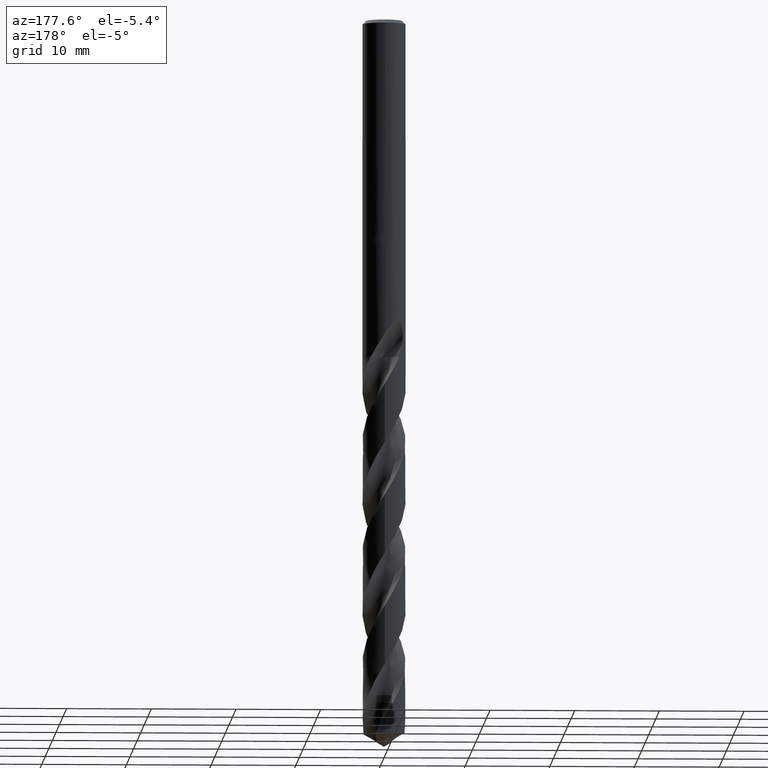
[diagram: clean part render]
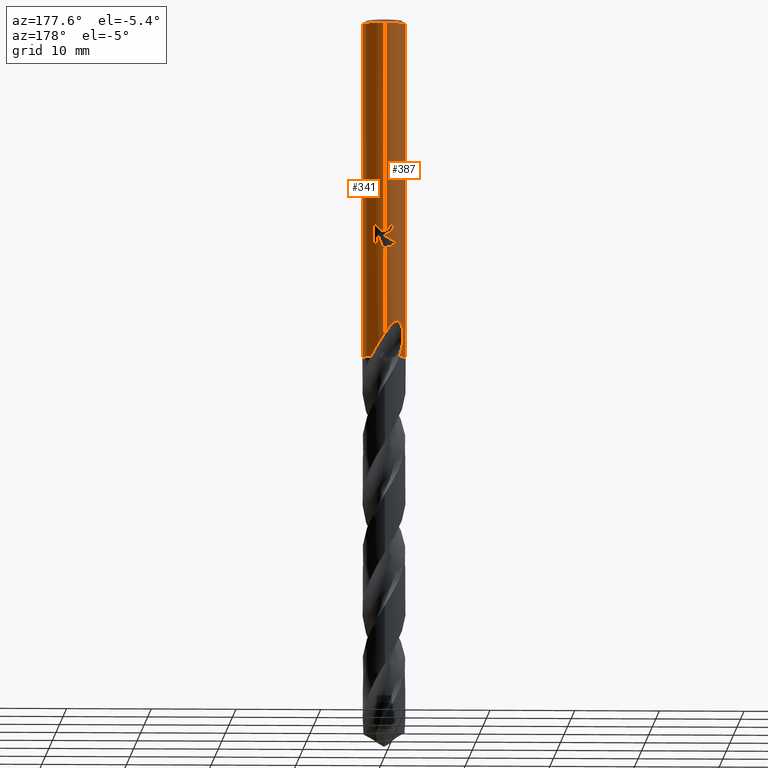
[diagram: same view with one multi-face feature highlighted, each face labeled with its STEP entity id]
A machine part, auxiliary view. The highlighted faces form ONE feature: a constant-radius fillet chain: 2 tangent blend faces with common blend radius 2.55 mm. The faces share edges in the B-rep.
Their STEP definitions:
[1] entity #387 (Cylinder):
#279=VERTEX_POINT('',#778);
#281=EDGE_CURVE('',#279,#441,#780,.T.);
#311=VERTEX_POINT('',#815);
#323=VERTEX_POINT('',#828);
#325=EDGE_CURVE('',#621,#331,#830,.T.);
#331=VERTEX_POINT('',#836);
#335=VERTEX_POINT('',#840);
#387=ADVANCED_FACE('',(#897),#898,.T.);
#391=EDGE_CURVE('',#425,#665,#902,.T.);
#393=VERTEX_POINT('',#904);
#425=VERTEX_POINT('',#941);
#441=VERTEX_POINT('',#957);
#485=EDGE_CURVE('',#609,#425,#1004,.T.);
#537=VERTEX_POINT('',#1059);
#553=EDGE_CURVE('',#311,#575,#1076,.T.);
#575=VERTEX_POINT('',#1099);
#577=EDGE_CURVE('',#441,#609,#1101,.T.);
#589=EDGE_CURVE('',#665,#623,#1115,.T.);
#593=EDGE_CURVE('',#335,#537,#1119,.T.);
#609=VERTEX_POINT('',#1137);
#617=EDGE_CURVE('',#393,#621,#1146,.T.);
#621=VERTEX_POINT('',#1150);
#623=VERTEX_POINT('',#1152);
#653=EDGE_CURVE('',#657,#575,#1184,.T.);
#657=VERTEX_POINT('',#1188);
#665=VERTEX_POINT('',#1198);
#675=EDGE_CURVE('',#323,#335,#1209,.T.);
#693=EDGE_CURVE('',#657,#279,#1228,.T.);
#715=EDGE_CURVE('',#623,#393,#1252,.T.);
#729=EDGE_CURVE('',#537,#311,#1269,.T.);
#737=EDGE_CURVE('',#331,#323,#1278,.T.);
#778=CARTESIAN_POINT('',(8.19722774088403E-013,-2.55,-37.1944020432198));
#780=LINE('',#1471,#1472);
#815=CARTESIAN_POINT('',(-2.07478751640229,1.48248330910713,-38.5086704184706));
#828=CARTESIAN_POINT('',(-1.337052752443,2.17135670427146,-26.3720803908795));
#830=LINE('',#1715,#1716);
#836=CARTESIAN_POINT('',(-3.12274620224706E-016,2.55,-25.7128911336578));
#840=CARTESIAN_POINT('',(1.0146208194845E-016,2.55,-27.0310253601033));
#897=FACE_OUTER_BOUND('',#2328,.T.);
#898=CYLINDRICAL_SURFACE('',#2329,2.55);
#902=B_SPLINE_CURVE_WITH_KNOTS('',3,(#2336,#2337,#2338,#2339,#2340,#2341,#2342,#2343,#2344,#2345,#2346,#2347,#2348,#2349,#2350,#2351,#2352,#2353,#2354,#2355,#2356,#2357,#2358,#2359,#2360,#2361,#2362),.UNSPECIFIED.,.F.,.F.,(4,2,3,2,2,2,2,2,2,2,2,2,4),(-0.545364452007878,-0.272682226003939,0.0,0.272682226003939,0.545364452007878,0.820193175057681,1.09502189810748,1.3660672093545,1.63711252060152,1.9092698417396,2.18142716287768,2.45358448401575,2.72574180515383),.UNSPECIFIED.);
#904=CARTESIAN_POINT('',(-1.0350734039088,2.33047700021276,-24.3171221986971));
#941=CARTESIAN_POINT('',(-1.16429289846349E-015,2.55,-25.0232688117743));
#957=CARTESIAN_POINT('',(3.12274620224706E-016,-2.55,-0.399999999999999));
#1004=LINE('',#3471,#3472);
#1059=CARTESIAN_POINT('',(-8.20832997113028E-013,2.55,-37.1944020432198));
#1076=B_SPLINE_CURVE_WITH_KNOTS('',3,(#5034,#5035,#5036,#5037),.UNSPECIFIED.,.F.,.F.,(4,4),(0.0,1.46027444966669),.UNSPECIFIED.);
#1099=CARTESIAN_POINT('',(-1.77376667079447,1.8320075866597,-39.9));
#1101=CIRCLE('',#5080,2.55);
#1115=B_SPLINE_CURVE_WITH_KNOTS('',3,(#5271,#5272,#5273,#5274,#5275,#5276,#5277,#5278,#5279,#5280,#5281,#5282,#5283,#5284,#5285,#5286,#5287,#5288,#5289,#5290,#5291,#5292,#5293,#5294,#5295,#5296,#5297),.UNSPECIFIED.,.F.,.F.,(4,2,3,2,2,2,2,2,2,2,2,2,4),(-0.545364452007878,-0.272682226003939,0.0,0.272682226003939,0.545364452007878,0.820193175057681,1.09502189810748,1.3660672093545,1.63711252060152,1.9092698417396,2.18142716287768,2.45358448401575,2.72574180515383),.UNSPECIFIED.);
#1119=LINE('',#5302,#5303);
#1137=CARTESIAN_POINT('',(0.0,2.55,-0.399999999999999));
#1146=B_SPLINE_CURVE_WITH_KNOTS('',3,(#6129,#6130,#6131,#6132,#6133,#6134,#6135,#6136,#6137,#6138,#6139,#6140,#6141,#6142,#6143,#6144),.UNSPECIFIED.,.F.,.F.,(4,2,2,2,2,2,2,4),(3.40456646310992,3.63093216842028,3.85729787373065,4.08366357904102,4.53639498966175,4.98511114005673,5.43382729045171,5.89282539333501),.UNSPECIFIED.);
#1150=CARTESIAN_POINT('',(-5.89297921147403E-017,2.55,-25.5000801551881));
#1152=CARTESIAN_POINT('',(-0.562333990228013,2.48722344863389,-24.3171221986971));
#1184=CIRCLE('',#6559,2.55);
#1188=CARTESIAN_POINT('',(-1.62252704032341,-1.96720766657192,-39.9));
#1198=CARTESIAN_POINT('',(-0.486378944383047,2.50318507555091,-24.6432837483006));
#1209=B_SPLINE_CURVE_WITH_KNOTS('',3,(#6745,#6746,#6747,#6748,#6749,#6750,#6751,#6752,#6753,#6754,#6755,#6756,#6757,#6758),.UNSPECIFIED.,.F.,.F.,(4,2,2,2,2,2,4),(5.73045896206865,6.37039006809862,6.68816813431112,7.00594620052362,7.32372426673613,7.64150233294863,7.95724082299976),.UNSPECIFIED.);
#1228=B_SPLINE_CURVE_WITH_KNOTS('',3,(#6929,#6930,#6931,#6932,#6933,#6934,#6935,#6936,#6937,#6938,#6939,#6940,#6941,#6942,#6943,#6944,#6945,#6946,#6947,#6948,#6949,#6950,#6951,#6952,#6953,#6954,#6955,#6956),.UNSPECIFIED.,.F.,.F.,(4,2,2,2,2,2,2,2,2,2,2,2,2,4),(0.0,1.24572091610398,1.927565779245,2.54569044803933,3.26412263290358,4.12685159076571,4.87234190309073,5.21101516350773,5.45858921436223,5.69289635033605,5.99017346349032,6.4251397966631,7.04346886642402,7.7461574974107),.UNSPECIFIED.);
#1252=CIRCLE('',#7059,2.55);
#1269=B_SPLINE_CURVE_WITH_KNOTS('',3,(#7248,#7249,#7250,#7251,#7252,#7253,#7254,#7255,#7256,#7257,#7258,#7259,#7260,#7261,#7262,#7263,#7264,#7265,#7266,#7267,#7268,#7269,#7270,#7271,#7272,#7273,#7274,#7275),.UNSPECIFIED.,.F.,.F.,(4,2,2,2,2,2,2,2,2,2,2,2,2,4),(0.0,1.24572091610398,1.92756577924506,2.54569044803948,3.26412263290359,4.12685159076577,4.8723419030908,5.21101516350781,5.4585892143623,5.69289635033612,5.99017346349038,6.42513979666435,7.04346886642923,7.74615749742081),.UNSPECIFIED.);
#1278=ELLIPSE('',#7710,2.84306750170929,2.55);
#1471=CARTESIAN_POINT('',(3.12274620224706E-016,-2.55,-34.45));
#1472=VECTOR('',#7892,1.0);
#1715=CARTESIAN_POINT('',(-3.12274620224706E-016,2.55,-34.45));
#1716=VECTOR('',#7969,1.0);
#2328=EDGE_LOOP('',(#8046,#8047,#8048,#8049,#8050,#8051,#8052,#8053,#8054,#8055,#8056,#8057,#8058,#8059,#8060));
#2329=AXIS2_PLACEMENT_3D('',#8061,#8062,#8063);
#2336=CARTESIAN_POINT('',(0.665926145423956,2.46151221180005,-23.8144018657024));
#2337=CARTESIAN_POINT('',(0.728923765407755,2.44446912664062,-23.8776677021038));
#2338=CARTESIAN_POINT('',(0.783860176321498,2.42684151535854,-23.9578241517427));
#2339=CARTESIAN_POINT('',(0.857116231736911,2.40194678277551,-24.1343323482328));
#2340=CARTESIAN_POINT('',(0.875400981188567,2.39503092300164,-24.2307479372521));
#2341=CARTESIAN_POINT('',(0.875400981188567,2.39503092300164,-24.3216420125868));
#2342=CARTESIAN_POINT('',(0.875400981188567,2.39503092300164,-24.4125360879214));
#2343=CARTESIAN_POINT('',(0.857116231736909,2.40194678277552,-24.5089516769407));
#2344=CARTESIAN_POINT('',(0.783860176321494,2.42684151535855,-24.6854598734308));
#2345=CARTESIAN_POINT('',(0.728923765407755,2.44446912664062,-24.7656163230698));
#2346=CARTESIAN_POINT('',(0.602432621445339,2.47868945653594,-24.8926460112105));
#2347=CARTESIAN_POINT('',(0.521997424418927,2.49761939924587,-24.9480838383736));
#2348=CARTESIAN_POINT('',(0.34479176646956,2.52818168103565,-25.0220380424342));
#2349=CARTESIAN_POINT('',(0.24796321643811,2.53956818325601,-25.0405166027747));
#2350=CARTESIAN_POINT('',(0.0663483246940973,2.55073729339058,-25.0405166027747));
#2351=CARTESIAN_POINT('',(-0.0298943452179204,2.55136154204061,-25.0224914484988));
#2352=CARTESIAN_POINT('',(-0.206784219328264,2.54314366034012,-24.9492947980859));
#2353=CARTESIAN_POINT('',(-0.287449216744173,2.53456196703142,-24.8941372955426));
#2354=CARTESIAN_POINT('',(-0.415038170156158,2.51682512373737,-24.7668898244719));
#2355=CARTESIAN_POINT('',(-0.470471899261567,2.50650526224512,-24.6861480431406));
#2356=CARTESIAN_POINT('',(-0.544134754870386,2.4915516939521,-24.5088996337151));
#2357=CARTESIAN_POINT('',(-0.562348199187247,2.48722023610111,-24.4123611196328));
#2358=CARTESIAN_POINT('',(-0.562348199187247,2.48722023610111,-24.2309229055408));
#2359=CARTESIAN_POINT('',(-0.544134754870388,2.4915516939521,-24.1343843914584));
#2360=CARTESIAN_POINT('',(-0.470471899261571,2.50650526224512,-23.957135982033));
#2361=CARTESIAN_POINT('',(-0.415038170156158,2.51682512373737,-23.8763942007017));
#2362=CARTESIAN_POINT('',(-0.35111309745364,2.52571170025332,-23.8126402187003));
#3471=CARTESIAN_POINT('',(-3.12274620224706E-016,2.55,-34.45));
#3472=VECTOR('',#8166,1.0);
#5034=CARTESIAN_POINT('',(-2.07478751645491,1.48248330903348,-38.5086704184995));
#5035=CARTESIAN_POINT('',(-1.99287275310206,1.59712590054343,-38.9745894503495));
#5036=CARTESIAN_POINT('',(-1.89420791716216,1.71539525920451,-39.4432471318709));
#5037=CARTESIAN_POINT('',(-1.77376667079447,1.8320075866597,-39.9));
#5080=AXIS2_PLACEMENT_3D('',#8245,#8246,#8247);
#5271=CARTESIAN_POINT('',(0.665926145423956,2.46151221180005,-23.8144018657024));
#5272=CARTESIAN_POINT('',(0.728923765407755,2.44446912664062,-23.8776677021038));
#5273=CARTESIAN_POINT('',(0.783860176321498,2.42684151535854,-23.9578241517427));
#5274=CARTESIAN_POINT('',(0.857116231736911,2.40194678277551,-24.1343323482328));
#5275=CARTESIAN_POINT('',(0.875400981188567,2.39503092300164,-24.2307479372521));
#5276=CARTESIAN_POINT('',(0.875400981188567,2.39503092300164,-24.3216420125868));
#5277=CARTESIAN_POINT('',(0.875400981188567,2.39503092300164,-24.4125360879214));
#5278=CARTESIAN_POINT('',(0.857116231736909,2.40194678277552,-24.5089516769407));
#5279=CARTESIAN_POINT('',(0.783860176321494,2.42684151535855,-24.6854598734308));
#5280=CARTESIAN_POINT('',(0.728923765407755,2.44446912664062,-24.7656163230698));
#5281=CARTESIAN_POINT('',(0.602432621445339,2.47868945653594,-24.8926460112105));
#5282=CARTESIAN_POINT('',(0.521997424418927,2.49761939924587,-24.9480838383736));
#5283=CARTESIAN_POINT('',(0.34479176646956,2.52818168103565,-25.0220380424342));
#5284=CARTESIAN_POINT('',(0.24796321643811,2.53956818325601,-25.0405166027747));
#5285=CARTESIAN_POINT('',(0.0663483246940973,2.55073729339058,-25.0405166027747));
#5286=CARTESIAN_POINT('',(-0.0298943452179204,2.55136154204061,-25.0224914484988));
#5287=CARTESIAN_POINT('',(-0.206784219328264,2.54314366034012,-24.9492947980859));
#5288=CARTESIAN_POINT('',(-0.287449216744173,2.53456196703142,-24.8941372955426));
#5289=CARTESIAN_POINT('',(-0.415038170156158,2.51682512373737,-24.7668898244719));
#5290=CARTESIAN_POINT('',(-0.470471899261567,2.50650526224512,-24.6861480431406));
#5291=CARTESIAN_POINT('',(-0.544134754870386,2.4915516939521,-24.5088996337151));
#5292=CARTESIAN_POINT('',(-0.562348199187247,2.48722023610111,-24.4123611196328));
#5293=CARTESIAN_POINT('',(-0.562348199187247,2.48722023610111,-24.2309229055408));
#5294=CARTESIAN_POINT('',(-0.544134754870388,2.4915516939521,-24.1343843914584));
#5295=CARTESIAN_POINT('',(-0.470471899261571,2.50650526224512,-23.957135982033));
#5296=CARTESIAN_POINT('',(-0.415038170156158,2.51682512373737,-23.8763942007017));
#5297=CARTESIAN_POINT('',(-0.35111309745364,2.52571170025332,-23.8126402187003));
#5302=CARTESIAN_POINT('',(-3.12274620224706E-016,2.55,-34.45));
#5303=VECTOR('',#8282,1.0);
#6129=CARTESIAN_POINT('',(-1.01251390159901,2.34036655228807,-24.0961877081597));
#6130=CARTESIAN_POINT('',(-1.02777548677533,2.33376392547324,-24.1731522798183));
#6131=CARTESIAN_POINT('',(-1.03510901790186,2.33046118205351,-24.2508466256293));
#6132=CARTESIAN_POINT('',(-1.03510901790186,2.33046118205351,-24.4017570958362));
#6133=CARTESIAN_POINT('',(-1.02777548677533,2.33376392547324,-24.4794514416473));
#6134=CARTESIAN_POINT('',(-0.997252316422689,2.3469691791029,-24.6333805849645));
#6135=CARTESIAN_POINT('',(-0.974073182599157,2.35685305237043,-24.7096190636835));
#6136=CARTESIAN_POINT('',(-0.882702881811928,2.39324771111563,-24.9282489707792));
#6137=CARTESIAN_POINT('',(-0.791523914881433,2.42649116428006,-25.0604235350961));
#6138=CARTESIAN_POINT('',(-0.582607281733028,2.48490012415617,-25.2683465468797));
#6139=CARTESIAN_POINT('',(-0.450698277714345,2.51411725520493,-25.3587739185454));
#6140=CARTESIAN_POINT('',(-0.160131103535409,2.54917095178093,-25.479327832674));
#6141=CARTESIAN_POINT('',(-0.00136230971375423,2.55438249725698,-25.5093686300866));
#6142=CARTESIAN_POINT('',(0.300699355998913,2.53682650250196,-25.5093686300866));
#6143=CARTESIAN_POINT('',(0.461082316825695,2.51245081783262,-25.4780790302888));
#6144=CARTESIAN_POINT('',(0.606793074483244,2.47675234223351,-25.4167683329767));
#6559=AXIS2_PLACEMENT_3D('',#8330,#8331,#8332);
#6745=CARTESIAN_POINT('',(-1.529392543729,2.04045545091927,-26.0346330793719));
#6746=CARTESIAN_POINT('',(-1.44571516321961,2.10317440439819,-26.2333635916117));
#6747=CARTESIAN_POINT('',(-1.32228848686681,2.18620707421904,-26.4117393689932));
#6748=CARTESIAN_POINT('',(-1.1106896637742,2.29676812751569,-26.6236687551982));
#6749=CARTESIAN_POINT('',(-1.03111920909412,2.33412025797358,-26.6903031851718));
#6750=CARTESIAN_POINT('',(-0.856588263656707,2.40365986538806,-26.8089230655788));
#6751=CARTESIAN_POINT('',(-0.761617234961182,2.4358075958279,-26.860916308323));
#6752=CARTESIAN_POINT('',(-0.561638864282871,2.48953435126709,-26.9453141096912));
#6753=CARTESIAN_POINT('',(-0.45642441423651,2.51113713675704,-26.9777862660452));
#6754=CARTESIAN_POINT('',(-0.242748672564269,2.54070975271748,-27.0207743284381));
#6755=CARTESIAN_POINT('',(-0.13428163925475,2.54866411351335,-27.0312723335086));
#6756=CARTESIAN_POINT('',(0.0768774838957041,2.55101285911495,-27.0312723335086));
#6757=CARTESIAN_POINT('',(0.184832664644226,2.5455501466062,-27.0209060411108));
#6758=CARTESIAN_POINT('',(0.291316102673783,2.5333051392051,-26.9995905689554));
#6929=CARTESIAN_POINT('',(-1.62252704032342,-1.96720766657192,-39.9));
#6930=CARTESIAN_POINT('',(-1.45450395055843,-2.10579090370288,-39.5464643739392));
#6931=CARTESIAN_POINT('',(-1.26151227460563,-2.22888080578244,-39.2166729009947));
#6932=CARTESIAN_POINT('',(-0.92499396973038,-2.37989701650025,-38.6655156812865));
#6933=CARTESIAN_POINT('',(-0.803718583836976,-2.42340134875207,-38.4712860363077));
#6934=CARTESIAN_POINT('',(-0.568864455201842,-2.48843725651094,-38.0951727765276));
#6935=CARTESIAN_POINT('',(-0.456323090745382,-2.51141440110766,-37.9150245047383));
#6936=CARTESIAN_POINT('',(-0.212664183822403,-2.54455203509446,-37.5266859065708));
#6937=CARTESIAN_POINT('',(-0.0794982813847438,-2.5523006814386,-37.3154378740592));
#6938=CARTESIAN_POINT('',(0.216189673229876,-2.54593861888492,-36.8636427643463));
#6939=CARTESIAN_POINT('',(0.391530128853632,-2.52661044513747,-36.6065678243739));
#6940=CARTESIAN_POINT('',(0.729202888398329,-2.44878859895057,-36.1834665739826));
#6941=CARTESIAN_POINT('',(0.915633086408643,-2.38969272154235,-35.9774802287587));
#6942=CARTESIAN_POINT('',(1.19802321973349,-2.25318450381766,-35.7842881033407));
#6943=CARTESIAN_POINT('',(1.29165195302975,-2.2015650860226,-35.736470352591));
#6944=CARTESIAN_POINT('',(1.45571968661267,-2.09527932094291,-35.6997562630343));
#6945=CARTESIAN_POINT('',(1.52301707899621,-2.04687332289995,-35.699088576774));
#6946=CARTESIAN_POINT('',(1.6483653726531,-1.94716633515309,-35.7312942375271));
#6947=CARTESIAN_POINT('',(1.70318777896409,-1.89900858625733,-35.7614764898908));
#6948=CARTESIAN_POINT('',(1.81475597493038,-1.79347062178477,-35.8559011803372));
#6949=CARTESIAN_POINT('',(1.8663729860326,-1.73877691468951,-35.9256153221448));
#6950=CARTESIAN_POINT('',(1.97210159204333,-1.61934941933433,-36.1165109217558));
#6951=CARTESIAN_POINT('',(2.02263525152396,-1.55431443741097,-36.2581003499798));
#6952=CARTESIAN_POINT('',(2.11764770472597,-1.4237465540666,-36.6542298582074));
#6953=CARTESIAN_POINT('',(2.1519871820494,-1.3681465607236,-36.9363413874393));
#6954=CARTESIAN_POINT('',(2.17388448010844,-1.3331200534951,-37.6105862847541));
#6955=CARTESIAN_POINT('',(2.15829138222322,-1.36561671282757,-38.0337235487456));
#6956=CARTESIAN_POINT('',(2.07478751640229,-1.48248330910713,-38.5086704184706));
#7059=AXIS2_PLACEMENT_3D('',#8400,#8401,#8402);
#7248=CARTESIAN_POINT('',(1.62252704032342,1.96720766657192,-39.9));
#7249=CARTESIAN_POINT('',(1.45450395055843,2.10579090370288,-39.5464643739392));
#7250=CARTESIAN_POINT('',(1.26151227460564,2.22888080578244,-39.2166729009947));
#7251=CARTESIAN_POINT('',(0.924993969730364,2.37989701650025,-38.6655156812865));
#7252=CARTESIAN_POINT('',(0.803718583836941,2.42340134875208,-38.4712860363077));
#7253=CARTESIAN_POINT('',(0.568864455201866,2.48843725651093,-38.0951727765277));
#7254=CARTESIAN_POINT('',(0.456323090745434,2.51141440110766,-37.9150245047384));
#7255=CARTESIAN_POINT('',(0.212664183822382,2.54455203509447,-37.5266859065708));
#7256=CARTESIAN_POINT('',(0.0794982813847308,2.5523006814386,-37.3154378740592));
#7257=CARTESIAN_POINT('',(-0.216189673229907,2.54593861888492,-36.8636427643463));
#7258=CARTESIAN_POINT('',(-0.391530128853643,2.52661044513746,-36.6065678243739));
#7259=CARTESIAN_POINT('',(-0.729202888398319,2.44878859895058,-36.1834665739826));
#7260=CARTESIAN_POINT('',(-0.915633086408641,2.38969272154235,-35.9774802287587));
#7261=CARTESIAN_POINT('',(-1.19802321973348,2.25318450381766,-35.7842881033407));
#7262=CARTESIAN_POINT('',(-1.29165195302975,2.2015650860226,-35.736470352591));
#7263=CARTESIAN_POINT('',(-1.45571968661267,2.09527932094291,-35.6997562630343));
#7264=CARTESIAN_POINT('',(-1.52301707899621,2.04687332289995,-35.699088576774));
#7265=CARTESIAN_POINT('',(-1.6483653726531,1.94716633515309,-35.7312942375271));
#7266=CARTESIAN_POINT('',(-1.7031877789641,1.89900858625733,-35.7614764898908));
#7267=CARTESIAN_POINT('',(-1.81475597493038,1.79347062178478,-35.8559011803372));
#7268=CARTESIAN_POINT('',(-1.8663729860326,1.73877691468952,-35.9256153221447));
#7269=CARTESIAN_POINT('',(-1.97210159204352,1.61934941933413,-36.1165109217561));
#7270=CARTESIAN_POINT('',(-2.02263525152408,1.55431443741081,-36.2581003499803));
#7271=CARTESIAN_POINT('',(-2.11764770472601,1.42374655406654,-36.6542298582076));
#7272=CARTESIAN_POINT('',(-2.15198718204941,1.36814656072359,-36.9363413874395));
#7273=CARTESIAN_POINT('',(-2.17388448010844,1.3331200534951,-37.610586284754));
#7274=CARTESIAN_POINT('',(-2.15829138222323,1.36561671282757,-38.0337235487456));
#7275=CARTESIAN_POINT('',(-2.07478751640229,1.48248330910713,-38.5086704184706));
#7710=AXIS2_PLACEMENT_3D('',#8446,#8447,#8448);
#7892=DIRECTION('',(-0.0,-0.0,1.0));
#7969=DIRECTION('',(0.0,0.0,-1.0));
#8046=ORIENTED_EDGE('',*,*,#485,.T.);
#8047=ORIENTED_EDGE('',*,*,#391,.T.);
#8048=ORIENTED_EDGE('',*,*,#589,.T.);
#8049=ORIENTED_EDGE('',*,*,#715,.T.);
#8050=ORIENTED_EDGE('',*,*,#617,.T.);
#8051=ORIENTED_EDGE('',*,*,#325,.T.);
#8052=ORIENTED_EDGE('',*,*,#737,.T.);
#8053=ORIENTED_EDGE('',*,*,#675,.T.);
#8054=ORIENTED_EDGE('',*,*,#593,.T.);
#8055=ORIENTED_EDGE('',*,*,#729,.T.);
#8056=ORIENTED_EDGE('',*,*,#553,.T.);
#8057=ORIENTED_EDGE('',*,*,#653,.F.);
#8058=ORIENTED_EDGE('',*,*,#693,.T.);
#8059=ORIENTED_EDGE('',*,*,#281,.T.);
#8060=ORIENTED_EDGE('',*,*,#577,.T.);
#8061=CARTESIAN_POINT('',(0.0,0.0,-34.45));
#8062=DIRECTION('',(-0.0,-0.0,1.0));
#8063=DIRECTION('',(0.0,1.0,0.0));
#8166=DIRECTION('',(0.0,0.0,-1.0));
#8245=CARTESIAN_POINT('',(0.0,0.0,-0.399999999999999));
#8246=DIRECTION('',(0.0,0.0,-1.0));
#8247=DIRECTION('',(0.0,1.0,0.0));
#8282=DIRECTION('',(0.0,0.0,-1.0));
#8330=CARTESIAN_POINT('',(0.0,0.0,-39.9));
#8331=DIRECTION('',(0.0,0.0,-1.0));
#8332=DIRECTION('',(0.0,1.0,0.0));
#8400=CARTESIAN_POINT('',(0.0,0.0,-24.3171221986971));
#8401=DIRECTION('',(0.0,-0.0,1.0));
#8402=DIRECTION('',(0.0,1.0,0.0));
#8446=CARTESIAN_POINT('',(0.0,0.0,-25.7128911336578));
#8447=DIRECTION('',(-0.442195774284071,0.0,0.896918556617774));
#8448=DIRECTION('',(0.896918556617774,-0.0,0.442195774284071));
[2] entity #341 (Cylinder):
#279=VERTEX_POINT('',#778);
#281=EDGE_CURVE('',#279,#441,#780,.T.);
#335=VERTEX_POINT('',#840);
#337=EDGE_CURVE('',#515,#509,#842,.T.);
#339=EDGE_CURVE('',#433,#591,#844,.T.);
#341=ADVANCED_FACE('',(#846),#847,.T.);
#365=EDGE_CURVE('',#609,#441,#874,.T.);
#369=EDGE_CURVE('',#509,#631,#878,.T.);
#425=VERTEX_POINT('',#941);
#429=EDGE_CURVE('',#435,#537,#945,.T.);
#433=VERTEX_POINT('',#949);
#435=VERTEX_POINT('',#951);
#441=VERTEX_POINT('',#957);
#485=EDGE_CURVE('',#609,#425,#1004,.T.);
#509=VERTEX_POINT('',#1030);
#515=VERTEX_POINT('',#1037);
#537=VERTEX_POINT('',#1059);
#541=EDGE_CURVE('',#435,#591,#1063,.T.);
#563=EDGE_CURVE('',#639,#683,#1087,.T.);
#569=EDGE_CURVE('',#683,#679,#1093,.T.);
#591=VERTEX_POINT('',#1117);
#593=EDGE_CURVE('',#335,#537,#1119,.T.);
#595=EDGE_CURVE('',#335,#515,#1121,.T.);
#609=VERTEX_POINT('',#1137);
#631=VERTEX_POINT('',#1161);
#633=EDGE_CURVE('',#631,#639,#1163,.T.);
#639=VERTEX_POINT('',#1170);
#679=VERTEX_POINT('',#1213);
#683=VERTEX_POINT('',#1218);
#709=EDGE_CURVE('',#279,#433,#1246,.T.);
#711=EDGE_CURVE('',#679,#425,#1248,.T.);
#778=CARTESIAN_POINT('',(8.19722774088403E-013,-2.55,-37.1944020432198));
#780=LINE('',#1471,#1472);
#840=CARTESIAN_POINT('',(1.0146208194845E-016,2.55,-27.0310253601033));
#842=ELLIPSE('',#1733,7.77238616209292,2.55);
#844=B_SPLINE_CURVE_WITH_KNOTS('',3,(#1736,#1737,#1738,#1739),.UNSPECIFIED.,.F.,.F.,(4,4),(0.0,1.46027444966663),.UNSPECIFIED.);
#846=FACE_OUTER_BOUND('',#1741,.T.);
#847=CYLINDRICAL_SURFACE('',#1742,2.55);
#874=CIRCLE('',#1954,2.55);
#878=LINE('',#1959,#1960);
#941=CARTESIAN_POINT('',(-1.16429289846349E-015,2.55,-25.0232688117743));
#945=B_SPLINE_CURVE_WITH_KNOTS('',3,(#2848,#2849,#2850,#2851,#2852,#2853,#2854,#2855,#2856,#2857,#2858,#2859,#2860,#2861,#2862,#2863,#2864,#2865,#2866,#2867,#2868,#2869,#2870,#2871,#2872,#2873,#2874,#2875),.UNSPECIFIED.,.F.,.F.,(4,2,2,2,2,2,2,2,2,2,2,2,2,4),(0.0,1.24572091610398,1.92756577924506,2.54569044803948,3.26412263290359,4.12685159076577,4.8723419030908,5.21101516350781,5.4585892143623,5.69289635033612,5.99017346349038,6.42513979666435,7.04346886642923,7.74615749742081),.UNSPECIFIED.);
#949=CARTESIAN_POINT('',(2.07478751640229,-1.48248330910713,-38.5086704184706));
#951=CARTESIAN_POINT('',(1.62252704032342,1.96720766657192,-39.9));
#957=CARTESIAN_POINT('',(3.12274620224706E-016,-2.55,-0.399999999999999));
#1004=LINE('',#3471,#3472);
#1030=CARTESIAN_POINT('',(0.873560781758957,2.39570272792195,-25.3198931596091));
#1037=CARTESIAN_POINT('',(0.29010312703583,2.53344433048844,-26.9998328990228));
#1059=CARTESIAN_POINT('',(-8.20832997113028E-013,2.55,-37.1944020432198));
#1063=CIRCLE('',#5018,2.55);
#1087=LINE('',#5050,#5051);
#1093=B_SPLINE_CURVE_WITH_KNOTS('',3,(#5060,#5061,#5062,#5063,#5064,#5065,#5066,#5067),.UNSPECIFIED.,.F.,.F.,(4,2,2,4),(0.638299667504419,1.27659933500884,1.59233779963684,1.90807626426484),.UNSPECIFIED.);
#1117=CARTESIAN_POINT('',(1.77376667079447,-1.8320075866597,-39.9));
#1119=LINE('',#5302,#5303);
#1121=B_SPLINE_CURVE_WITH_KNOTS('',3,(#5306,#5307,#5308,#5309,#5310,#5311,#5312,#5313,#5314,#5315,#5316,#5317,#5318,#5319),.UNSPECIFIED.,.F.,.F.,(4,2,2,2,2,2,4),(5.73045896206865,6.37039006809862,6.68816813431112,7.00594620052362,7.32372426673613,7.64150233294863,7.95724082299976),.UNSPECIFIED.);
#1137=CARTESIAN_POINT('',(0.0,2.55,-0.399999999999999));
#1161=CARTESIAN_POINT('',(0.873560781758956,2.39570272792195,-26.7587351791531));
#1163=B_SPLINE_CURVE_WITH_KNOTS('',3,(#6356,#6357,#6358,#6359,#6360,#6361,#6362,#6363),.UNSPECIFIED.,.F.,.F.,(4,2,2,4),(8.27296970472744,8.58870815927253,8.90444661381762,9.54274625815598),.UNSPECIFIED.);
#1170=CARTESIAN_POINT('',(1.33721006514658,2.17125982822662,-26.2901657003257));
#1213=CARTESIAN_POINT('',(0.799431726384364,2.42144768988515,-24.000000276873));
#1218=CARTESIAN_POINT('',(1.33721006514658,2.17125982822662,-24.5150484364821));
#1246=B_SPLINE_CURVE_WITH_KNOTS('',3,(#6996,#6997,#6998,#6999,#7000,#7001,#7002,#7003,#7004,#7005,#7006,#7007,#7008,#7009,#7010,#7011,#7012,#7013,#7014,#7015,#7016,#7017,#7018,#7019,#7020,#7021,#7022,#7023),.UNSPECIFIED.,.F.,.F.,(4,2,2,2,2,2,2,2,2,2,2,2,2,4),(0.0,1.24572091610398,1.927565779245,2.54569044803933,3.26412263290358,4.12685159076571,4.87234190309073,5.21101516350773,5.45858921436223,5.69289635033605,5.99017346349032,6.4251397966631,7.04346886642402,7.7461574974107),.UNSPECIFIED.);
#1248=B_SPLINE_CURVE_WITH_KNOTS('',3,(#7026,#7027,#7028,#7029,#7030,#7031,#7032,#7033,#7034,#7035,#7036,#7037,#7038,#7039,#7040,#7041,#7042,#7043,#7044,#7045,#7046,#7047,#7048,#7049,#7050,#7051,#7052),.UNSPECIFIED.,.F.,.F.,(4,2,3,2,2,2,2,2,2,2,2,2,4),(-0.545364452007878,-0.272682226003939,0.0,0.272682226003939,0.545364452007878,0.820193175057681,1.09502189810748,1.3660672093545,1.63711252060152,1.9092698417396,2.18142716287768,2.45358448401575,2.72574180515383),.UNSPECIFIED.);
#1471=CARTESIAN_POINT('',(3.12274620224706E-016,-2.55,-34.45));
#1472=VECTOR('',#7892,1.0);
#1733=AXIS2_PLACEMENT_3D('',#7972,#7973,#7974);
#1736=CARTESIAN_POINT('',(2.07478751645491,-1.48248330903348,-38.5086704184995));
#1737=CARTESIAN_POINT('',(1.99287275310207,-1.59712590054343,-38.9745894503495));
#1738=CARTESIAN_POINT('',(1.89420791716216,-1.71539525920451,-39.4432471318709));
#1739=CARTESIAN_POINT('',(1.77376667079447,-1.8320075866597,-39.9));
#1741=EDGE_LOOP('',(#7976,#7977,#7978,#7979,#7980,#7981,#7982,#7983,#7984,#7985,#7986,#7987,#7988,#7989,#7990));
#1742=AXIS2_PLACEMENT_3D('',#7991,#7992,#7993);
#1954=AXIS2_PLACEMENT_3D('',#8030,#8031,#8032);
#1959=CARTESIAN_POINT('',(0.873560781758957,2.39570272792195,-26.0393141693811));
#1960=VECTOR('',#8033,1.0);
#2848=CARTESIAN_POINT('',(1.62252704032342,1.96720766657192,-39.9));
#2849=CARTESIAN_POINT('',(1.45450395055843,2.10579090370288,-39.5464643739392));
#2850=CARTESIAN_POINT('',(1.26151227460564,2.22888080578244,-39.2166729009947));
#2851=CARTESIAN_POINT('',(0.924993969730364,2.37989701650025,-38.6655156812865));
#2852=CARTESIAN_POINT('',(0.803718583836941,2.42340134875208,-38.4712860363077));
#2853=CARTESIAN_POINT('',(0.568864455201866,2.48843725651093,-38.0951727765277));
#2854=CARTESIAN_POINT('',(0.456323090745434,2.51141440110766,-37.9150245047384));
#2855=CARTESIAN_POINT('',(0.212664183822382,2.54455203509447,-37.5266859065708));
#2856=CARTESIAN_POINT('',(0.0794982813847308,2.5523006814386,-37.3154378740592));
#2857=CARTESIAN_POINT('',(-0.216189673229907,2.54593861888492,-36.8636427643463));
#2858=CARTESIAN_POINT('',(-0.391530128853643,2.52661044513746,-36.6065678243739));
#2859=CARTESIAN_POINT('',(-0.729202888398319,2.44878859895058,-36.1834665739826));
#2860=CARTESIAN_POINT('',(-0.915633086408641,2.38969272154235,-35.9774802287587));
#2861=CARTESIAN_POINT('',(-1.19802321973348,2.25318450381766,-35.7842881033407));
#2862=CARTESIAN_POINT('',(-1.29165195302975,2.2015650860226,-35.736470352591));
#2863=CARTESIAN_POINT('',(-1.45571968661267,2.09527932094291,-35.6997562630343));
#2864=CARTESIAN_POINT('',(-1.52301707899621,2.04687332289995,-35.699088576774));
#2865=CARTESIAN_POINT('',(-1.6483653726531,1.94716633515309,-35.7312942375271));
#2866=CARTESIAN_POINT('',(-1.7031877789641,1.89900858625733,-35.7614764898908));
#2867=CARTESIAN_POINT('',(-1.81475597493038,1.79347062178478,-35.8559011803372));
#2868=CARTESIAN_POINT('',(-1.8663729860326,1.73877691468952,-35.9256153221447));
#2869=CARTESIAN_POINT('',(-1.97210159204352,1.61934941933413,-36.1165109217561));
#2870=CARTESIAN_POINT('',(-2.02263525152408,1.55431443741081,-36.2581003499803));
#2871=CARTESIAN_POINT('',(-2.11764770472601,1.42374655406654,-36.6542298582076));
#2872=CARTESIAN_POINT('',(-2.15198718204941,1.36814656072359,-36.9363413874395));
#2873=CARTESIAN_POINT('',(-2.17388448010844,1.3331200534951,-37.610586284754));
#2874=CARTESIAN_POINT('',(-2.15829138222323,1.36561671282757,-38.0337235487456));
#2875=CARTESIAN_POINT('',(-2.07478751640229,1.48248330910713,-38.5086704184706));
#3471=CARTESIAN_POINT('',(-3.12274620224706E-016,2.55,-34.45));
#3472=VECTOR('',#8166,1.0);
#5018=AXIS2_PLACEMENT_3D('',#8200,#8201,#8202);
#5050=CARTESIAN_POINT('',(1.33721006514658,2.17125982822662,-25.4026070684039));
#5051=VECTOR('',#8238,1.0);
#5060=CARTESIAN_POINT('',(1.47258826575283,2.08182223053917,-24.7703924137372));
#5061=CARTESIAN_POINT('',(1.38867636175997,2.14117761178973,-24.5711750669516));
#5062=CARTESIAN_POINT('',(1.26466285337017,2.21996034821006,-24.3921410012587));
#5063=CARTESIAN_POINT('',(1.05205438654083,2.32418204527684,-24.1798497817827));
#5064=CARTESIAN_POINT('',(0.972337031916454,2.35918132993624,-24.1133122385005));
#5065=CARTESIAN_POINT('',(0.797627116334371,2.42383308713452,-23.9949771679437));
#5066=CARTESIAN_POINT('',(0.702624636063435,2.45344453104067,-23.9431718736537));
#5067=CARTESIAN_POINT('',(0.60272031855663,2.47774660076429,-23.9011798737145));
#5302=CARTESIAN_POINT('',(-3.12274620224706E-016,2.55,-34.45));
#5303=VECTOR('',#8282,1.0);
#5306=CARTESIAN_POINT('',(-1.529392543729,2.04045545091927,-26.0346330793719));
#5307=CARTESIAN_POINT('',(-1.44571516321961,2.10317440439819,-26.2333635916117));
#5308=CARTESIAN_POINT('',(-1.32228848686681,2.18620707421904,-26.4117393689932));
#5309=CARTESIAN_POINT('',(-1.1106896637742,2.29676812751569,-26.6236687551982));
#5310=CARTESIAN_POINT('',(-1.03111920909412,2.33412025797358,-26.6903031851718));
#5311=CARTESIAN_POINT('',(-0.856588263656707,2.40365986538806,-26.8089230655788));
#5312=CARTESIAN_POINT('',(-0.761617234961182,2.4358075958279,-26.860916308323));
#5313=CARTESIAN_POINT('',(-0.561638864282871,2.48953435126709,-26.9453141096912));
#5314=CARTESIAN_POINT('',(-0.45642441423651,2.51113713675704,-26.9777862660452));
#5315=CARTESIAN_POINT('',(-0.242748672564269,2.54070975271748,-27.0207743284381));
#5316=CARTESIAN_POINT('',(-0.13428163925475,2.54866411351335,-27.0312723335086));
#5317=CARTESIAN_POINT('',(0.0768774838957041,2.55101285911495,-27.0312723335086));
#5318=CARTESIAN_POINT('',(0.184832664644226,2.5455501466062,-27.0209060411108));
#5319=CARTESIAN_POINT('',(0.291316102673783,2.5333051392051,-26.9995905689554));
#6356=CARTESIAN_POINT('',(0.602720341406854,2.47774659520589,-26.9040342467484));
#6357=CARTESIAN_POINT('',(0.702624655569435,2.45344452531991,-26.8620422481383));
#6358=CARTESIAN_POINT('',(0.797627132637891,2.42383308165614,-26.8102369555013));
#6359=CARTESIAN_POINT('',(0.972337042330106,2.35918132552788,-26.6919018887118));
#6360=CARTESIAN_POINT('',(1.05205439426646,2.32418204169406,-26.6253643475437));
#6361=CARTESIAN_POINT('',(1.26466285333266,2.21996034781532,-26.4130731353301));
#6362=CARTESIAN_POINT('',(1.38867635719231,2.1411776145583,-26.2340390759421));
#6363=CARTESIAN_POINT('',(1.4725882581066,2.08182223594777,-26.0348217361667));
#6996=CARTESIAN_POINT('',(-1.62252704032342,-1.96720766657192,-39.9));
#6997=CARTESIAN_POINT('',(-1.45450395055843,-2.10579090370288,-39.5464643739392));
#6998=CARTESIAN_POINT('',(-1.26151227460563,-2.22888080578244,-39.2166729009947));
#6999=CARTESIAN_POINT('',(-0.92499396973038,-2.37989701650025,-38.6655156812865));
#7000=CARTESIAN_POINT('',(-0.803718583836976,-2.42340134875207,-38.4712860363077));
#7001=CARTESIAN_POINT('',(-0.568864455201842,-2.48843725651094,-38.0951727765276));
#7002=CARTESIAN_POINT('',(-0.456323090745382,-2.51141440110766,-37.9150245047383));
#7003=CARTESIAN_POINT('',(-0.212664183822403,-2.54455203509446,-37.5266859065708));
#7004=CARTESIAN_POINT('',(-0.0794982813847438,-2.5523006814386,-37.3154378740592));
#7005=CARTESIAN_POINT('',(0.216189673229876,-2.54593861888492,-36.8636427643463));
#7006=CARTESIAN_POINT('',(0.391530128853632,-2.52661044513747,-36.6065678243739));
#7007=CARTESIAN_POINT('',(0.729202888398329,-2.44878859895057,-36.1834665739826));
#7008=CARTESIAN_POINT('',(0.915633086408643,-2.38969272154235,-35.9774802287587));
#7009=CARTESIAN_POINT('',(1.19802321973349,-2.25318450381766,-35.7842881033407));
#7010=CARTESIAN_POINT('',(1.29165195302975,-2.2015650860226,-35.736470352591));
#7011=CARTESIAN_POINT('',(1.45571968661267,-2.09527932094291,-35.6997562630343));
#7012=CARTESIAN_POINT('',(1.52301707899621,-2.04687332289995,-35.699088576774));
#7013=CARTESIAN_POINT('',(1.6483653726531,-1.94716633515309,-35.7312942375271));
#7014=CARTESIAN_POINT('',(1.70318777896409,-1.89900858625733,-35.7614764898908));
#7015=CARTESIAN_POINT('',(1.81475597493038,-1.79347062178477,-35.8559011803372));
#7016=CARTESIAN_POINT('',(1.8663729860326,-1.73877691468951,-35.9256153221448));
#7017=CARTESIAN_POINT('',(1.97210159204333,-1.61934941933433,-36.1165109217558));
#7018=CARTESIAN_POINT('',(2.02263525152396,-1.55431443741097,-36.2581003499798));
#7019=CARTESIAN_POINT('',(2.11764770472597,-1.4237465540666,-36.6542298582074));
#7020=CARTESIAN_POINT('',(2.1519871820494,-1.3681465607236,-36.9363413874393));
#7021=CARTESIAN_POINT('',(2.17388448010844,-1.3331200534951,-37.6105862847541));
#7022=CARTESIAN_POINT('',(2.15829138222322,-1.36561671282757,-38.0337235487456));
#7023=CARTESIAN_POINT('',(2.07478751640229,-1.48248330910713,-38.5086704184706));
#7026=CARTESIAN_POINT('',(0.665926145423956,2.46151221180005,-23.8144018657024));
#7027=CARTESIAN_POINT('',(0.728923765407755,2.44446912664062,-23.8776677021038));
#7028=CARTESIAN_POINT('',(0.783860176321498,2.42684151535854,-23.9578241517427));
#7029=CARTESIAN_POINT('',(0.857116231736911,2.40194678277551,-24.1343323482328));
#7030=CARTESIAN_POINT('',(0.875400981188567,2.39503092300164,-24.2307479372521));
#7031=CARTESIAN_POINT('',(0.875400981188567,2.39503092300164,-24.3216420125868));
#7032=CARTESIAN_POINT('',(0.875400981188567,2.39503092300164,-24.4125360879214));
#7033=CARTESIAN_POINT('',(0.857116231736909,2.40194678277552,-24.5089516769407));
#7034=CARTESIAN_POINT('',(0.783860176321494,2.42684151535855,-24.6854598734308));
#7035=CARTESIAN_POINT('',(0.728923765407755,2.44446912664062,-24.7656163230698));
#7036=CARTESIAN_POINT('',(0.602432621445339,2.47868945653594,-24.8926460112105));
#7037=CARTESIAN_POINT('',(0.521997424418927,2.49761939924587,-24.9480838383736));
#7038=CARTESIAN_POINT('',(0.34479176646956,2.52818168103565,-25.0220380424342));
#7039=CARTESIAN_POINT('',(0.24796321643811,2.53956818325601,-25.0405166027747));
#7040=CARTESIAN_POINT('',(0.0663483246940973,2.55073729339058,-25.0405166027747));
#7041=CARTESIAN_POINT('',(-0.0298943452179204,2.55136154204061,-25.0224914484988));
#7042=CARTESIAN_POINT('',(-0.206784219328264,2.54314366034012,-24.9492947980859));
#7043=CARTESIAN_POINT('',(-0.287449216744173,2.53456196703142,-24.8941372955426));
#7044=CARTESIAN_POINT('',(-0.415038170156158,2.51682512373737,-24.7668898244719));
#7045=CARTESIAN_POINT('',(-0.470471899261567,2.50650526224512,-24.6861480431406));
#7046=CARTESIAN_POINT('',(-0.544134754870386,2.4915516939521,-24.5088996337151));
#7047=CARTESIAN_POINT('',(-0.562348199187247,2.48722023610111,-24.4123611196328));
#7048=CARTESIAN_POINT('',(-0.562348199187247,2.48722023610111,-24.2309229055408));
#7049=CARTESIAN_POINT('',(-0.544134754870388,2.4915516939521,-24.1343843914584));
#7050=CARTESIAN_POINT('',(-0.470471899261571,2.50650526224512,-23.957135982033));
#7051=CARTESIAN_POINT('',(-0.415038170156158,2.51682512373737,-23.8763942007017));
#7052=CARTESIAN_POINT('',(-0.35111309745364,2.52571170025332,-23.8126402187003));
#7892=DIRECTION('',(-0.0,-0.0,1.0));
#7972=CARTESIAN_POINT('',(0.0,0.0,-27.8351219173269));
#7973=DIRECTION('',(0.944648353914092,0.0,-0.328084573619969));
#7974=DIRECTION('',(0.328084573619969,-0.0,0.944648353914092));
#7976=ORIENTED_EDGE('',*,*,#485,.F.);
#7977=ORIENTED_EDGE('',*,*,#365,.T.);
#7978=ORIENTED_EDGE('',*,*,#281,.F.);
#7979=ORIENTED_EDGE('',*,*,#709,.T.);
#7980=ORIENTED_EDGE('',*,*,#339,.T.);
#7981=ORIENTED_EDGE('',*,*,#541,.F.);
#7982=ORIENTED_EDGE('',*,*,#429,.T.);
#7983=ORIENTED_EDGE('',*,*,#593,.F.);
#7984=ORIENTED_EDGE('',*,*,#595,.T.);
#7985=ORIENTED_EDGE('',*,*,#337,.T.);
#7986=ORIENTED_EDGE('',*,*,#369,.T.);
#7987=ORIENTED_EDGE('',*,*,#633,.T.);
#7988=ORIENTED_EDGE('',*,*,#563,.T.);
#7989=ORIENTED_EDGE('',*,*,#569,.T.);
#7990=ORIENTED_EDGE('',*,*,#711,.T.);
#7991=CARTESIAN_POINT('',(0.0,0.0,-34.45));
#7992=DIRECTION('',(-0.0,-0.0,1.0));
#7993=DIRECTION('',(0.0,1.0,0.0));
#8030=CARTESIAN_POINT('',(0.0,0.0,-0.399999999999999));
#8031=DIRECTION('',(0.0,0.0,-1.0));
#8032=DIRECTION('',(0.0,1.0,0.0));
#8033=DIRECTION('',(0.0,0.0,-1.0));
#8166=DIRECTION('',(0.0,0.0,-1.0));
#8200=CARTESIAN_POINT('',(0.0,0.0,-39.9));
#8201=DIRECTION('',(0.0,0.0,-1.0));
#8202=DIRECTION('',(0.0,1.0,0.0));
#8238=DIRECTION('',(-0.0,-0.0,1.0));
#8282=DIRECTION('',(0.0,0.0,-1.0));